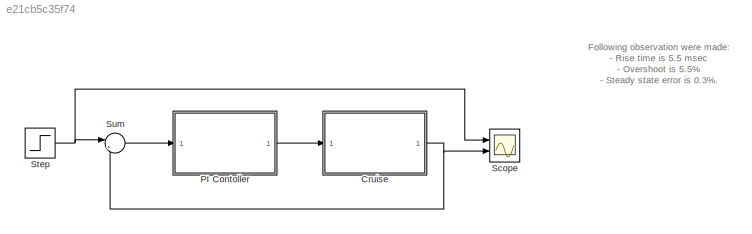
MODEL slx_e21cb5c35f74
KIND model
CONFIG AbsTol = auto
CONFIG EnableMultiTasking = off
CONFIG FixedStep = auto
CONFIG MaxStep = auto
CONFIG MinStep = auto
CONFIG RelTol = 1e-3
CONFIG SampleTimeConstraint = Unconstrained
CONFIG SolverName = VariableStepAuto
CONFIG StartTime = 0.0
CONFIG StopTime = 10.0
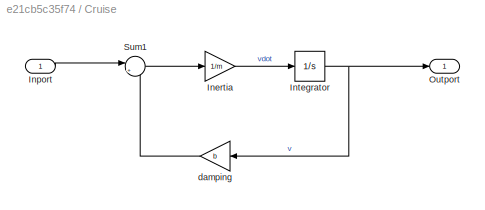
BLOCK [SubSystem] Cruise
  Ports = [1, 1]
  RequestExecContextInheritance = off
BLOCK [Gain] Cruise/Inertia
  Gain = 1/m
BLOCK [Inport] Cruise/Inport
  OutDataTypeStr = double
  PortDimensions = 1
  SampleTime = 0
  SamplingMode = Sample based
  SignalType = real
BLOCK [Integrator] Cruise/Integrator
  Ports = [1, 1]
BLOCK [Outport] Cruise/Outport
  OutDataTypeStr = double
  PortDimensions = 1
  SampleTime = 0
  SamplingMode = Sample based
  SignalType = real
BLOCK [Sum] Cruise/Sum1
  Inputs = |+-
  NameLocation = top
  Ports = [2, 1]
BLOCK [Gain] Cruise/damping
  Gain = b
BLOCK [ModelReference] PI Contoller
  ModelNameDialog = PI_Contoller
  ModelReferenceVersion = 1.10
  Ports = [1, 1]
BLOCK [Scope] Scope
  Floating = off
  NumInputPorts = 2
  Ports = [2]
  ScopeSpecificationString = Simulink.scopes.TimeScopeBlockCfg('CurrentConfiguration', extmgr.ConfigurationSet(extmgr.Configuration('Core','General UI',true),extmgr.Configuration('Core','Source UI',true),extmgr.Configuration('Sources','WiredSimulink',true),extmgr.Configuration('Visuals','Time Domain',true,'SerializedDisplays',{struct('MinYLimReal','-0.125','MaxYLimReal','1.125','YLabelReal','','MinYLimMag','0.00000','MaxYLimM...<+2447ch>
BLOCK [Step] Step
  SampleTime = 0
BLOCK [Sum] Sum
  Inputs = |+-
  Ports = [2, 1]
ANNOTATION (root): Following observation were made: - Rise time is 5.5 msec - Overshoot is 5.5% - Steady state error is 0.3%.
LINE Cruise/Inertia:1 -> Cruise/Integrator:1
LINE Cruise/Inport:1 -> Cruise/Sum1:1
NET Cruise/Integrator:1 -> Cruise/Outport:1, Cruise/damping:1
LINE Cruise/Sum1:1 -> Cruise/Inertia:1
LINE Cruise/damping:1 -> Cruise/Sum1:2
NET Cruise:1 -> Scope:2, Sum:2
LINE PI Contoller:1 -> Cruise:1
NET Step:1 -> Scope:1, Sum:1
LINE Sum:1 -> PI Contoller:1
note: NET lines group one-source signal fan-out (src -> all destinations, sorted); 1:1 wires keep LINE
